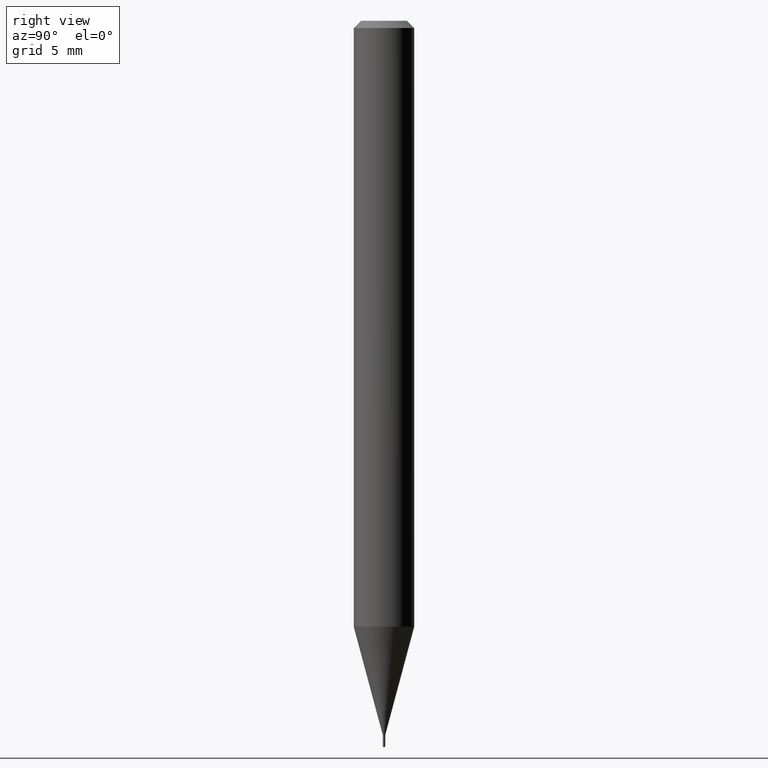
[diagram: clean part render]
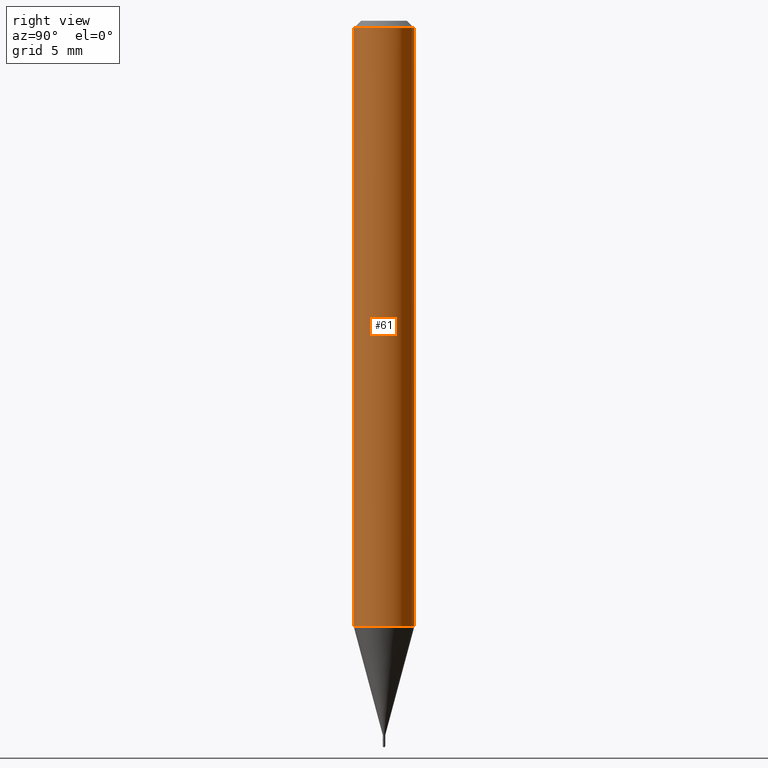
[diagram: same view with one face highlighted and labeled with its STEP entity id]
A machine part, right view. The second image highlights one B-rep face of the part: STEP entity #61.
In plain terms, the highlighted cylindrical surface (edge-blend (fillet) strip) has radius 1.5875 mm, axis along (-0, 0, 1).
Its self-contained STEP definition (entity closure, byte-faithful):
#5 = CARTESIAN_POINT ( 'NONE',  ( 4.440892098500930859E-16, 0.06249999999999562850, -1.251076951545868177 ) ) ;
#11 = AXIS2_PLACEMENT_3D ( 'NONE', #27, #292, #438 ) ;
#21 = CIRCLE ( 'NONE', #11, 0.06250000000000000000 ) ;
#26 = CARTESIAN_POINT ( 'NONE',  ( -4.364351673553912750E-16, -0.06250000000000005551, -0.01499999999999954321 ) ) ;
#27 = CARTESIAN_POINT ( 'NONE',  ( 3.667621488824774095E-31, -5.238055065062620777E-17, -0.01499999999999976179 ) ) ;
#55 = VERTEX_POINT ( 'NONE', #26 ) ;
#61 = ADVANCED_FACE ( 'NONE', ( #213 ), #79, .T. ) ;
#65 = ORIENTED_EDGE ( 'NONE', *, *, #312, .F. ) ;
#79 = CYLINDRICAL_SURFACE ( 'NONE', #200, 0.06250000000000000000 ) ;
#81 = VERTEX_POINT ( 'NONE', #178 ) ;
#92 = EDGE_CURVE ( 'NONE', #81, #431, #274, .T. ) ;
#113 = VERTEX_POINT ( 'NONE', #159 ) ;
#124 = VECTOR ( 'NONE', #417, 39.37007874015748143 ) ;
#129 = DIRECTION ( 'NONE',  ( -6.982962677686265922E-15, -1.000000000000000000, 3.492036710041802175E-15 ) ) ;
#132 = DIRECTION ( 'NONE',  ( -2.445080992549888330E-29, 3.492036710041802569E-15, 1.000000000000000000 ) ) ;
#134 = EDGE_CURVE ( 'NONE', #81, #55, #448, .T. ) ;
#139 = CARTESIAN_POINT ( 'NONE',  ( 3.058984474442059272E-29, -4.368806641885360110E-15, -1.251076951545867955 ) ) ;
#156 = ORIENTED_EDGE ( 'NONE', *, *, #277, .T. ) ;
#159 = CARTESIAN_POINT ( 'NONE',  ( 4.440892098500933817E-16, 0.06249999999999995837, -0.01499999999999997863 ) ) ;
#178 = CARTESIAN_POINT ( 'NONE',  ( -4.364351673553610517E-16, -0.06250000000000435763, -1.251076951545867733 ) ) ;
#200 = AXIS2_PLACEMENT_3D ( 'NONE', #405, #364, #129 ) ;
#213 = FACE_OUTER_BOUND ( 'NONE', #229, .T. ) ;
#220 = DIRECTION ( 'NONE',  ( -2.445080992549888330E-29, 3.492036710041802569E-15, 1.000000000000000000 ) ) ;
#229 = EDGE_LOOP ( 'NONE', ( #461, #156, #65, #428 ) ) ;
#267 = AXIS2_PLACEMENT_3D ( 'NONE', #139, #220, #336 ) ;
#274 = CIRCLE ( 'NONE', #267, 0.06250000000000000000 ) ;
#277 = EDGE_CURVE ( 'NONE', #431, #113, #282, .T. ) ;
#282 = LINE ( 'NONE', #480, #362 ) ;
#292 = DIRECTION ( 'NONE',  ( -2.445080992549888330E-29, 3.492036710041802569E-15, 1.000000000000000000 ) ) ;
#312 = EDGE_CURVE ( 'NONE', #55, #113, #21, .T. ) ;
#336 = DIRECTION ( 'NONE',  ( -6.982962677686265922E-15, -1.000000000000000000, 4.370956789862821150E-15 ) ) ;
#362 = VECTOR ( 'NONE', #132, 39.37007874015748143 ) ;
#364 = DIRECTION ( 'NONE',  ( -2.445080992549888330E-29, 3.492036710041802569E-15, 1.000000000000000000 ) ) ;
#405 = CARTESIAN_POINT ( 'NONE',  ( 0.000000000000000000, 0.000000000000000000, 0.000000000000000000 ) ) ;
#413 = CARTESIAN_POINT ( 'NONE',  ( -4.364351673553916201E-16, -0.06250000000000000000, 2.182522943776126359E-16 ) ) ;
#417 = DIRECTION ( 'NONE',  ( -2.445080992549888330E-29, 3.492036710041802569E-15, 1.000000000000000000 ) ) ;
#428 = ORIENTED_EDGE ( 'NONE', *, *, #134, .F. ) ;
#431 = VERTEX_POINT ( 'NONE', #5 ) ;
#438 = DIRECTION ( 'NONE',  ( -6.982962677686265922E-15, -1.000000000000000000, 3.483106191921935554E-15 ) ) ;
#448 = LINE ( 'NONE', #413, #124 ) ;
#461 = ORIENTED_EDGE ( 'NONE', *, *, #92, .T. ) ;
#480 = CARTESIAN_POINT ( 'NONE',  ( 4.440892098500625669E-16, 0.06250000000000000000, -2.182522943776126359E-16 ) ) ;